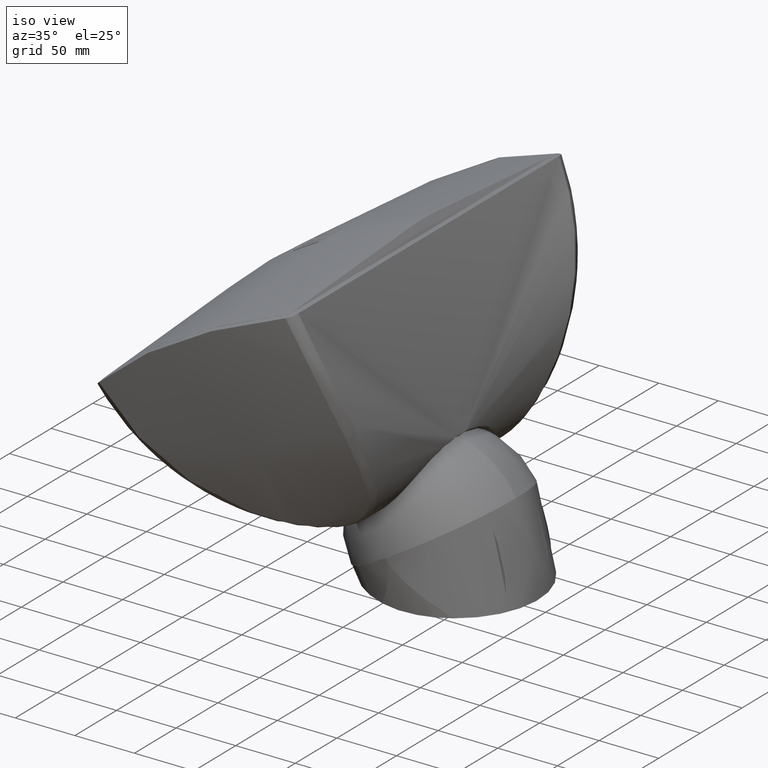
[diagram: clean part render]
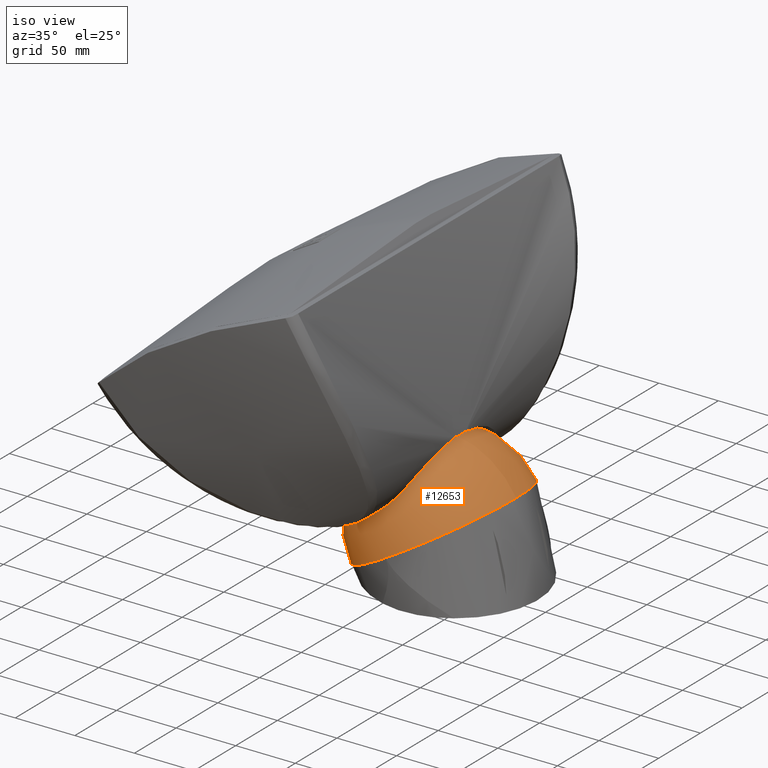
[diagram: same view with one face highlighted and labeled with its STEP entity id]
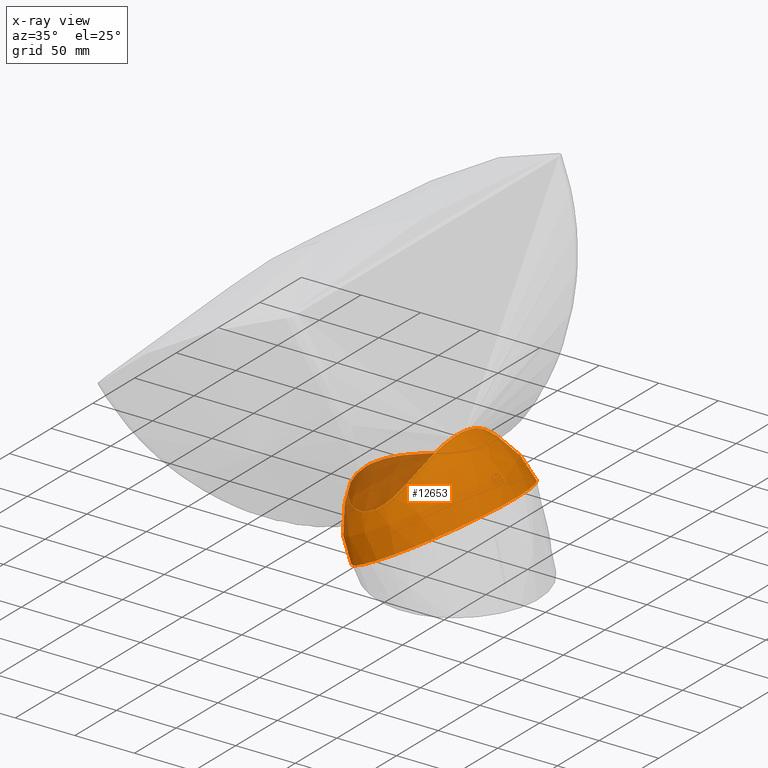
[diagram: x-ray of the same camera — body ghosted, the highlighted face saturated]
A machine part, iso view. The second image highlights one B-rep face of the part: STEP entity #12653.
The next image is the same camera in x-ray: the body ghosted, the highlighted face saturated — about 18% of this face is hidden behind the body in this view.
In plain terms, the highlighted spherical surface has radius 70 mm.
Its self-contained STEP definition (entity closure, byte-faithful):
#467=B_SPLINE_CURVE_WITH_KNOTS('',3,(#19978,#19979,#19980,#19981,#19982,
#19983),.UNSPECIFIED.,.F.,.F.,(4,2,4),(0.499917926044417,0.5,0.504467512586612),
 .UNSPECIFIED.);
#468=B_SPLINE_CURVE_WITH_KNOTS('',3,(#19985,#19986,#19987,#19988,#19989,
#19990,#19991,#19992,#19993,#19994,#19995,#19996,#19997,#19998,#19999,#20000,
#20001,#20002,#20003,#20004,#20005,#20006,#20007,#20008,#20009,#20010,#20011,
#20012,#20013,#20014),.UNSPECIFIED.,.F.,.F.,(4,2,2,2,2,2,2,2,2,2,2,2,2,
2,4),(0.504467512586612,0.53125,0.5625,0.59375,0.625,0.65625,0.6875,0.71875,
0.75,0.78125,0.8125,0.84375,0.875,0.9375,1.),.UNSPECIFIED.);
#469=B_SPLINE_CURVE_WITH_KNOTS('',3,(#20018,#20019,#20020,#20021),
 .UNSPECIFIED.,.F.,.F.,(4,4),(0.00441464433752432,0.0169247973559814),
 .UNSPECIFIED.);
#470=B_SPLINE_CURVE_WITH_KNOTS('',3,(#20023,#20024,#20025,#20026,#20027,
#20028,#20029,#20030,#20031,#20032,#20033,#20034,#20035,#20036,#20037,#20038,
#20039,#20040,#20041,#20042,#20043,#20044,#20045,#20046,#20047,#20048,#20049,
#20050,#20051,#20052),.UNSPECIFIED.,.F.,.F.,(4,2,2,2,2,2,2,2,2,2,2,2,2,
2,4),(0.0169247973559814,0.0624999999999998,0.0937499999999998,0.125,0.15625,
0.1875,0.21875,0.25,0.28125,0.3125,0.375,0.40625,0.4375,0.46875,0.481904581259325),
 .UNSPECIFIED.);
#471=B_SPLINE_CURVE_WITH_KNOTS('',3,(#20054,#20055,#20056,#20057),
 .UNSPECIFIED.,.F.,.F.,(4,4),(0.481904581259325,0.482963533024737),
 .UNSPECIFIED.);
#472=B_SPLINE_CURVE_WITH_KNOTS('',3,(#20058,#20059,#20060,#20061),
 .UNSPECIFIED.,.F.,.F.,(4,4),(0.482963533024737,0.499917926044417),
 .UNSPECIFIED.);
#473=B_SPLINE_CURVE_WITH_KNOTS('',3,(#20064,#20065,#20066,#20067,#20068,
#20069,#20070,#20071,#20072,#20073,#20074,#20075,#20076,#20077,#20078,#20079,
#20080,#20081,#20082,#20083,#20084,#20085,#20086,#20087,#20088,#20089,#20090,
#20091,#20092,#20093,#20094),.UNSPECIFIED.,.F.,.F.,(4,2,2,2,2,2,3,2,2,2,
2,2,2,2,4),(1.88890742043984,2.07600360204809,2.26431079559621,2.45261798914432,
2.64092518269244,2.83000805415573,3.01909092561903,3.20816707236366,3.39724321910828,
3.585549738757,3.77385625840572,3.96216277805444,4.15046929770316,4.33954544444778,
4.52862159119241),.UNSPECIFIED.);
#474=B_SPLINE_CURVE_WITH_KNOTS('',3,(#20095,#20096,#20097,#20098,#20099,
#20100,#20101,#20102),.UNSPECIFIED.,.F.,.F.,(4,2,2,4),(4.52862159119241,
4.71770446265571,4.906787334119,4.90799834605887),.UNSPECIFIED.);
#917=FACE_BOUND('',#4247,.T.);
#1033=SPHERICAL_SURFACE('',#13551,70.);
#3516=FACE_OUTER_BOUND('',#4246,.T.);
#4246=EDGE_LOOP('',(#8802,#8803,#8804,#8805,#8806,#8807,#8808,#8809,#8810,
#8811));
#4247=EDGE_LOOP('',(#8812,#8813));
#5015=CIRCLE('',#13422,70.);
#5072=CIRCLE('',#13552,70.);
#5073=CIRCLE('',#13553,70.8326319010138);
#5256=VERTEX_POINT('',#17592);
#5372=VERTEX_POINT('',#19975);
#5373=VERTEX_POINT('',#19977);
#5374=VERTEX_POINT('',#19984);
#5375=VERTEX_POINT('',#20015);
#5376=VERTEX_POINT('',#20017);
#5377=VERTEX_POINT('',#20022);
#5378=VERTEX_POINT('',#20053);
#5379=VERTEX_POINT('',#20062);
#5380=VERTEX_POINT('',#20063);
#6517=EDGE_CURVE('',#5256,#5256,#5015,.T.);
#6702=EDGE_CURVE('',#5256,#5372,#5072,.T.);
#6703=EDGE_CURVE('',#5372,#5373,#467,.T.);
#6704=EDGE_CURVE('',#5373,#5374,#468,.T.);
#6705=EDGE_CURVE('',#5374,#5375,#5073,.T.);
#6706=EDGE_CURVE('',#5375,#5376,#469,.T.);
#6707=EDGE_CURVE('',#5376,#5377,#470,.T.);
#6708=EDGE_CURVE('',#5377,#5378,#471,.T.);
#6709=EDGE_CURVE('',#5378,#5372,#472,.T.);
#6710=EDGE_CURVE('',#5379,#5380,#473,.T.);
#6711=EDGE_CURVE('',#5380,#5379,#474,.T.);
#8802=ORIENTED_EDGE('',*,*,#6517,.F.);
#8803=ORIENTED_EDGE('',*,*,#6702,.T.);
#8804=ORIENTED_EDGE('',*,*,#6703,.T.);
#8805=ORIENTED_EDGE('',*,*,#6704,.T.);
#8806=ORIENTED_EDGE('',*,*,#6705,.T.);
#8807=ORIENTED_EDGE('',*,*,#6706,.T.);
#8808=ORIENTED_EDGE('',*,*,#6707,.T.);
#8809=ORIENTED_EDGE('',*,*,#6708,.T.);
#8810=ORIENTED_EDGE('',*,*,#6709,.T.);
#8811=ORIENTED_EDGE('',*,*,#6702,.F.);
#8812=ORIENTED_EDGE('',*,*,#6710,.F.);
#8813=ORIENTED_EDGE('',*,*,#6711,.F.);
#12653=ADVANCED_FACE('',(#3516,#917),#1033,.T.);
#13422=AXIS2_PLACEMENT_3D('',#17593,#14492,#14493);
#13551=AXIS2_PLACEMENT_3D('',#19974,#14798,#14799);
#13552=AXIS2_PLACEMENT_3D('',#19976,#14800,#14801);
#13553=AXIS2_PLACEMENT_3D('',#20016,#14802,#14803);
#14492=DIRECTION('center_axis',(-2.76626434931402E-16,-1.7482760031329E-18,
-1.));
#14493=DIRECTION('ref_axis',(-1.,-4.9103346920328E-16,2.76626434931402E-16));
#14798=DIRECTION('center_axis',(-4.60321432537256E-16,-1.74827600313288E-18,
-1.));
#14799=DIRECTION('ref_axis',(-1.,-4.9103346920328E-16,4.06024420434343E-16));
#14800=DIRECTION('center_axis',(3.68568789288545E-16,-1.,1.74827600313281E-18));
#14801=DIRECTION('ref_axis',(1.,3.68568789288545E-16,-5.07530525542929E-16));
#14802=DIRECTION('center_axis',(-0.738045651749386,-1.3877660268722E-5,
-0.674750780467303));
#14803=DIRECTION('ref_axis',(-0.674587798862849,0.0219930942373918,0.737866929351927));
#17592=CARTESIAN_POINT('',(69.9999999999998,-8.99704683741034E-14,-215.));
#17593=CARTESIAN_POINT('Origin',(-1.73379140274888E-13,-1.15770283624302E-13,
-215.));
#19974=CARTESIAN_POINT('Origin',(-1.55118425174531E-13,-1.15770283624302E-13,
-215.));
#19975=CARTESIAN_POINT('',(43.8148674965405,-9.41618920076594E-13,-160.408266473721));
#19976=CARTESIAN_POINT('Origin',(-1.55118425174531E-13,-1.15770283624302E-13,
-215.));
#19977=CARTESIAN_POINT('',(43.8025770686185,-1.58816365717833,-160.421406539371));
#19978=CARTESIAN_POINT('Ctrl Pts',(43.8148674965405,-9.41618920076594E-13,
-160.408266473721));
#19979=CARTESIAN_POINT('Ctrl Pts',(43.8148675380879,-0.00955945283967295,
-160.408266404413));
#19980=CARTESIAN_POINT('Ctrl Pts',(43.8148662128673,-0.0191185390228768,
-160.408267799977));
#19981=CARTESIAN_POINT('Ctrl Pts',(43.8147169875984,-0.548984675160371,
-160.408426373851));
#19982=CARTESIAN_POINT('Ctrl Pts',(43.8106268428701,-1.06881348689476,-160.412809966896));
#19983=CARTESIAN_POINT('Ctrl Pts',(43.8025770686187,-1.5881636571647,-160.421406539371));
#19984=CARTESIAN_POINT('',(-43.8148675590251,-1.43799037863059E-13,-160.408266369485));
#19985=CARTESIAN_POINT('Ctrl Pts',(43.8025770686187,-1.5881636571647,-160.421406539371));
#19986=CARTESIAN_POINT('Ctrl Pts',(43.7543191234224,-4.7016388021656,-160.472942509251));
#19987=CARTESIAN_POINT('Ctrl Pts',(43.5637546566726,-7.79791188281182,-160.675890232314));
#19988=CARTESIAN_POINT('Ctrl Pts',(42.8350093906547,-14.4696493781881,-161.436762686734));
#19989=CARTESIAN_POINT('Ctrl Pts',(42.2362975224947,-18.0675536881098,-162.056417410703));
#19990=CARTESIAN_POINT('Ctrl Pts',(40.6257465662894,-25.0193499902532,-163.64880620601));
#19991=CARTESIAN_POINT('Ctrl Pts',(39.6171243026825,-28.3832320485105,-164.619122465472));
#19992=CARTESIAN_POINT('Ctrl Pts',(37.1296918875006,-34.8826571164836,-166.854974986859));
#19993=CARTESIAN_POINT('Ctrl Pts',(35.6409792719704,-38.0263339534627,-168.127966863018));
#19994=CARTESIAN_POINT('Ctrl Pts',(32.192729493164,-43.8592490276681,-170.804260269698));
#19995=CARTESIAN_POINT('Ctrl Pts',(30.2267860385264,-46.5771666915931,-172.216873260584));
#19996=CARTESIAN_POINT('Ctrl Pts',(25.6607755164324,-51.5764690218133,-175.064058443885));
#19997=CARTESIAN_POINT('Ctrl Pts',(23.0906519510395,-53.8152311751974,-176.476299132001));
#19998=CARTESIAN_POINT('Ctrl Pts',(17.3661323190122,-57.5825182066531,-178.999946002956));
#19999=CARTESIAN_POINT('Ctrl Pts',(14.1523159384496,-59.1361355506275,-180.127772000869));
#20000=CARTESIAN_POINT('Ctrl Pts',(7.30811659423582,-61.2468331410479,-181.700454628555));
#20001=CARTESIAN_POINT('Ctrl Pts',(3.63317862804912,-61.8122431800038,-182.145018570253));
#20002=CARTESIAN_POINT('Ctrl Pts',(-3.68889377520917,-61.8066363613353,
-182.140679205906));
#20003=CARTESIAN_POINT('Ctrl Pts',(-7.36107573060996,-61.2364258824452,
-181.692383031698));
#20004=CARTESIAN_POINT('Ctrl Pts',(-14.2105188493278,-59.112164380682,-180.110233375111));
#20005=CARTESIAN_POINT('Ctrl Pts',(-17.3971264482561,-57.5666330986606,
-178.988599675658));
#20006=CARTESIAN_POINT('Ctrl Pts',(-23.1307228409147,-53.7842923780661,
-176.456287639358));
#20007=CARTESIAN_POINT('Ctrl Pts',(-25.7155753370453,-51.5220622396872,
-175.031758727301));
#20008=CARTESIAN_POINT('Ctrl Pts',(-30.239713161444,-46.5573352546756,-172.206912886829));
#20009=CARTESIAN_POINT('Ctrl Pts',(-32.2296978342337,-43.8073178870068,
-170.777596545053));
#20010=CARTESIAN_POINT('Ctrl Pts',(-37.4250103770889,-34.9869210025674,
-166.73918858825));
#20011=CARTESIAN_POINT('Ctrl Pts',(-39.8120295114705,-28.5342473982119,
-164.453422222617));
#20012=CARTESIAN_POINT('Ctrl Pts',(-43.053084797866,-14.5394015254831,-161.248765725073));
#20013=CARTESIAN_POINT('Ctrl Pts',(-43.8148675590251,-7.36779346027436,
-160.408266369485));
#20014=CARTESIAN_POINT('Ctrl Pts',(-43.8148675590251,-1.43799037863059E-13,
-160.408266369485));
#20015=CARTESIAN_POINT('',(-43.8033231506753,1.55879165444383,-160.420925758716));
#20016=CARTESIAN_POINT('Origin',(3.97950608906344,0.000962769384262646,
-212.685982355213));
#20017=CARTESIAN_POINT('',(-43.6441106496576,5.94813342342826,-160.592837435345));
#20018=CARTESIAN_POINT('Ctrl Pts',(-43.8033231506753,1.55879165444383,-160.420925758716));
#20019=CARTESIAN_POINT('Ctrl Pts',(-43.7814891158025,3.02886352051264,-160.444807834816));
#20020=CARTESIAN_POINT('Ctrl Pts',(-43.7286146549045,4.49218774991943,-160.50238408121));
#20021=CARTESIAN_POINT('Ctrl Pts',(-43.6441106496576,5.94813342342826,-160.592837435345));
#20022=CARTESIAN_POINT('',(43.6174972265736,6.31933700866424,-160.617707991101));
#20023=CARTESIAN_POINT('Ctrl Pts',(-43.6441106496576,5.94813342342826,-160.592837435345));
#20024=CARTESIAN_POINT('Ctrl Pts',(-43.3362577275013,11.2522267475426,-160.922364175619));
#20025=CARTESIAN_POINT('Ctrl Pts',(-42.6086217456738,16.4583928699041,-161.688231469143));
#20026=CARTESIAN_POINT('Ctrl Pts',(-40.6264256881431,25.0178267510465,-163.648176093514));
#20027=CARTESIAN_POINT('Ctrl Pts',(-39.6015347589647,28.4291035658954,-164.633598369255));
#20028=CARTESIAN_POINT('Ctrl Pts',(-37.1190243183809,34.9053382869654,-166.864095616895));
#20029=CARTESIAN_POINT('Ctrl Pts',(-35.6564830547241,37.9999652880705,-168.115906441687));
#20030=CARTESIAN_POINT('Ctrl Pts',(-32.1784130296124,43.8836092247213,-170.815399166467));
#20031=CARTESIAN_POINT('Ctrl Pts',(-30.1833089711878,46.6295141120558,-172.245574789991));
#20032=CARTESIAN_POINT('Ctrl Pts',(-25.6468756924881,51.5868828600446,-175.071114643495));
#20033=CARTESIAN_POINT('Ctrl Pts',(-23.0551493176418,53.8448460122885,-176.495166619872));
#20034=CARTESIAN_POINT('Ctrl Pts',(-17.3030574030261,57.6176688289364,-179.024480698622));
#20035=CARTESIAN_POINT('Ctrl Pts',(-14.1173196323456,59.1525091194623,-180.139677616228));
#20036=CARTESIAN_POINT('Ctrl Pts',(-7.23876312379096,61.2625548970619,-181.712467779174));
#20037=CARTESIAN_POINT('Ctrl Pts',(-3.55461266968359,61.8197400266263,-182.150820684768));
#20038=CARTESIAN_POINT('Ctrl Pts',(3.76219966207056,61.7988647178979,-182.134664414355));
#20039=CARTESIAN_POINT('Ctrl Pts',(7.4174725017171,61.2246574072298,-181.683308744695));
#20040=CARTESIAN_POINT('Ctrl Pts',(14.2613915636372,59.0905743095436,-180.094467092098));
#20041=CARTESIAN_POINT('Ctrl Pts',(17.4434881685797,57.5428307598578,-178.971599884721));
#20042=CARTESIAN_POINT('Ctrl Pts',(26.0647637147176,51.835009767385,-175.153382580729));
#20043=CARTESIAN_POINT('Ctrl Pts',(30.5587240942188,46.6512508805524,-172.077811950468));
#20044=CARTESIAN_POINT('Ctrl Pts',(35.6849598977434,37.937577556025,-168.091087096762));
#20045=CARTESIAN_POINT('Ctrl Pts',(37.1411519584546,34.8571445606371,-166.845072276158));
#20046=CARTESIAN_POINT('Ctrl Pts',(39.6281835990854,28.3498633434529,-164.608779803865));
#20047=CARTESIAN_POINT('Ctrl Pts',(40.6465745846123,24.9401989689031,-163.628527719017));
#20048=CARTESIAN_POINT('Ctrl Pts',(42.2417588592052,18.0330506892696,-162.050697778859));
#20049=CARTESIAN_POINT('Ctrl Pts',(42.8299929330673,14.5058775573302,-161.441962343878));
#20050=CARTESIAN_POINT('Ctrl Pts',(43.3903949429604,9.38906694323614,-160.856908385547));
#20051=CARTESIAN_POINT('Ctrl Pts',(43.521456225184,7.8569288380924,-160.719104335712));
#20052=CARTESIAN_POINT('Ctrl Pts',(43.6174972265736,6.31933700866424,-160.617707991101));
#20053=CARTESIAN_POINT('',(43.6400104378835,5.94790542545527,-160.593928859171));
#20054=CARTESIAN_POINT('Ctrl Pts',(43.6174972265736,6.31933700866424,-160.617707991101));
#20055=CARTESIAN_POINT('Ctrl Pts',(43.6252285854036,6.19555993433875,-160.609545523895));
#20056=CARTESIAN_POINT('Ctrl Pts',(43.6327330006409,6.0717475179842,-160.601618991275));
#20057=CARTESIAN_POINT('Ctrl Pts',(43.6400104378811,5.94790542549658,-160.593928859173));
#20058=CARTESIAN_POINT('Ctrl Pts',(43.6400104378811,5.94790542549658,-160.593928859173));
#20059=CARTESIAN_POINT('Ctrl Pts',(43.7565261614274,3.9651262499055,-160.470805666711));
#20060=CARTESIAN_POINT('Ctrl Pts',(43.8148589139072,1.97473996871492,-160.40828079104));
#20061=CARTESIAN_POINT('Ctrl Pts',(43.8148674965405,-9.41618920076594E-13,
-160.408266473721));
#20062=CARTESIAN_POINT('',(-3.52437682468372,69.2563363839551,-205.453344110628));
#20063=CARTESIAN_POINT('',(-4.99999999999778,69.5629211577548,-209.));
#20064=CARTESIAN_POINT('Ctrl Pts',(-3.52437682468366,69.2563363839551,-205.453344110628));
#20065=CARTESIAN_POINT('Ctrl Pts',(-3.08244410496776,69.2182901935835,-205.014187484212));
#20066=CARTESIAN_POINT('Ctrl Pts',(-2.52404862139037,69.1852675197067,-204.63339663085));
#20067=CARTESIAN_POINT('Ctrl Pts',(-1.29705260110274,69.1412011871758,-204.125434406411));
#20068=CARTESIAN_POINT('Ctrl Pts',(-0.627690645158159,69.1303117308174,
-204.));
#20069=CARTESIAN_POINT('Ctrl Pts',(0.627690645162616,69.1303117308174,-204.));
#20070=CARTESIAN_POINT('Ctrl Pts',(1.2970526011072,69.1412011871757,-204.125434406411));
#20071=CARTESIAN_POINT('Ctrl Pts',(2.52800678194712,69.1854096730763,-204.635035263744));
#20072=CARTESIAN_POINT('Ctrl Pts',(3.08960495116814,69.2187237981707,-205.019187781334));
#20073=CARTESIAN_POINT('Ctrl Pts',(3.97810977662861,69.2955856625027,-205.906392441265));
#20074=CARTESIAN_POINT('Ctrl Pts',(4.36355484696075,69.344314922713,-206.469264291735));
#20075=CARTESIAN_POINT('Ctrl Pts',(4.87449338736699,69.4509036581032,-207.702098245627));
#20076=CARTESIAN_POINT('Ctrl Pts',(5.00000000000222,69.5087591350821,-208.37205524785));
#20077=CARTESIAN_POINT('Ctrl Pts',(5.00000000000222,69.5629211577544,-209.));
#20078=CARTESIAN_POINT('Ctrl Pts',(5.00000000000222,69.6170812541584,-209.627922419341));
#20079=CARTESIAN_POINT('Ctrl Pts',(4.87450131810346,69.674796322816,-210.297869074493));
#20080=CARTESIAN_POINT('Ctrl Pts',(4.36357631482166,69.7808797776453,-211.530697452046));
#20081=CARTESIAN_POINT('Ctrl Pts',(3.9781361947796,69.8292512882441,-212.093573186922));
#20082=CARTESIAN_POINT('Ctrl Pts',(3.08962794249091,69.9054433648557,-212.980797220205));
#20083=CARTESIAN_POINT('Ctrl Pts',(2.52801956175444,69.9384013167587,-213.364958422741));
#20084=CARTESIAN_POINT('Ctrl Pts',(1.29705256974434,69.9821068343016,-213.874566629385));
#20085=CARTESIAN_POINT('Ctrl Pts',(0.627688398831274,69.9928567783883,-214.));
#20086=CARTESIAN_POINT('Ctrl Pts',(-0.627688398826847,69.9928567783884,
-214.));
#20087=CARTESIAN_POINT('Ctrl Pts',(-1.29705256973991,69.9821068343017,-213.874566629385));
#20088=CARTESIAN_POINT('Ctrl Pts',(-2.52801956175001,69.9384013167589,-213.364958422741));
#20089=CARTESIAN_POINT('Ctrl Pts',(-3.08962794248648,69.905443364856,-212.980797220205));
#20090=CARTESIAN_POINT('Ctrl Pts',(-3.97813619477517,69.8292512882444,-212.093573186922));
#20091=CARTESIAN_POINT('Ctrl Pts',(-4.36357631481722,69.7808797776456,-211.530697452046));
#20092=CARTESIAN_POINT('Ctrl Pts',(-4.87450131809902,69.6747963228163,-210.297869074493));
#20093=CARTESIAN_POINT('Ctrl Pts',(-4.99999999999778,69.6170812541587,-209.627922419341));
#20094=CARTESIAN_POINT('Ctrl Pts',(-4.99999999999778,69.5629211577548,-209.));
#20095=CARTESIAN_POINT('Ctrl Pts',(-4.99999999999778,69.5629211577548,-209.));
#20096=CARTESIAN_POINT('Ctrl Pts',(-4.99999999999778,69.5087591350824,-208.37205524785));
#20097=CARTESIAN_POINT('Ctrl Pts',(-4.8744933873625,69.4509036581035,-207.702098245627));
#20098=CARTESIAN_POINT('Ctrl Pts',(-4.36355484695626,69.3443149227133,-206.469264291735));
#20099=CARTESIAN_POINT('Ctrl Pts',(-3.97810977662416,69.295585662503,-205.906392441265));
#20100=CARTESIAN_POINT('Ctrl Pts',(-3.53009312400186,69.2568290973324,-205.459031379689));
#20101=CARTESIAN_POINT('Ctrl Pts',(-3.52723730957221,69.25658264441,-205.456186626779));
#20102=CARTESIAN_POINT('Ctrl Pts',(-3.52437682468367,69.2563363839551,-205.453344110628));